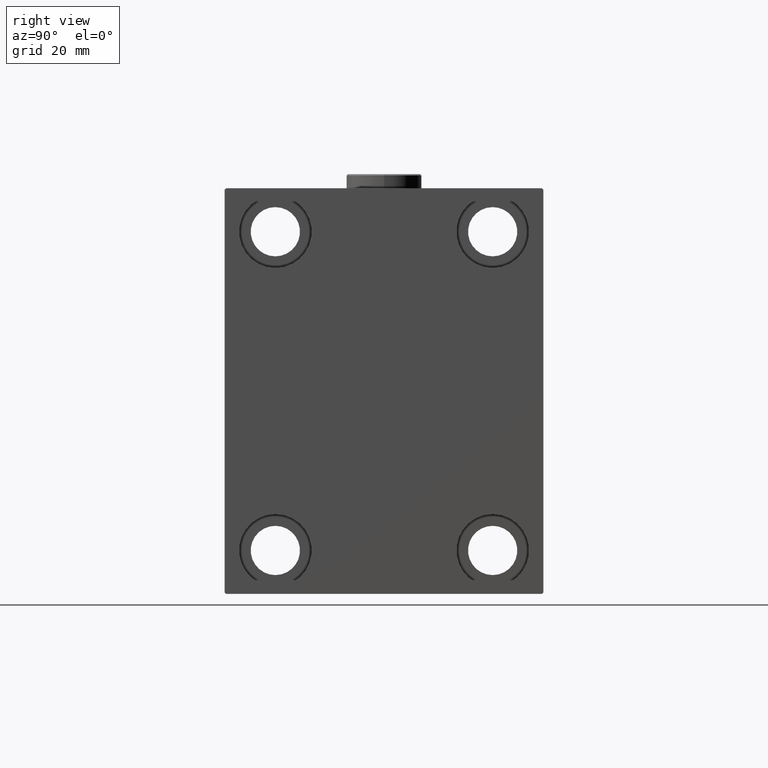
[diagram: clean part render]
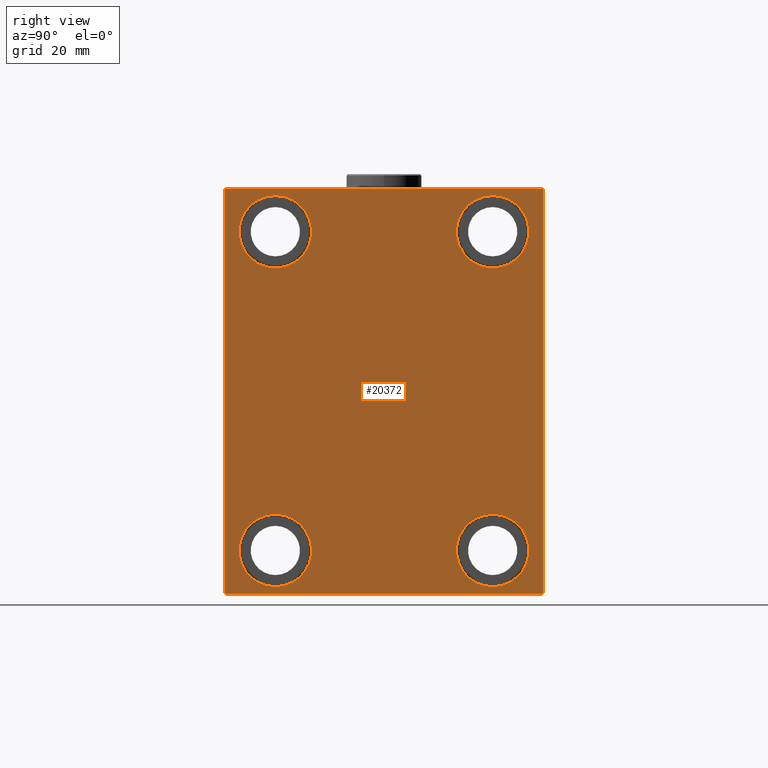
[diagram: same view with one face highlighted and labeled with its STEP entity id]
A machine part, right view. The second image highlights one B-rep face of the part: STEP entity #20372.
In plain terms, the highlighted planar face has unit normal (1, 0, 0).
Its self-contained STEP definition (entity closure, byte-faithful):
#80 = ORIENTED_EDGE ( 'NONE', *, *, #31693, .T. ) ;
#153 = ORIENTED_EDGE ( 'NONE', *, *, #15224, .T. ) ;
#292 = VERTEX_POINT ( 'NONE', #27396 ) ;
#642 = CARTESIAN_POINT ( 'NONE',  ( 103.0000000000000000, -55.00000000000000711, 69.99999999999998579 ) ) ;
#726 = CARTESIAN_POINT ( 'NONE',  ( 103.0000000000000000, 37.50000000000000711, 42.50000000000000711 ) ) ;
#1161 = EDGE_CURVE ( 'NONE', #18288, #46769, #21498, .T. ) ;
#1623 = CARTESIAN_POINT ( 'NONE',  ( 103.0000000000000000, 54.49999999999999289, 70.00000000000000000 ) ) ;
#2264 = DIRECTION ( 'NONE',  ( -1.000000000000000000, -0.000000000000000000, -0.000000000000000000 ) ) ;
#2378 = DIRECTION ( 'NONE',  ( 0.000000000000000000, 0.000000000000000000, -1.000000000000000000 ) ) ;
#2531 = LINE ( 'NONE', #20770, #16321 ) ;
#2836 = CIRCLE ( 'NONE', #5836, 12.49999999999999645 ) ;
#3513 = VERTEX_POINT ( 'NONE', #39877 ) ;
#3748 = CARTESIAN_POINT ( 'NONE',  ( 103.0000000000000000, 54.99999999999999289, 69.50000000000000000 ) ) ;
#3830 = AXIS2_PLACEMENT_3D ( 'NONE', #24161, #20611, #2378 ) ;
#4904 = VERTEX_POINT ( 'NONE', #46645 ) ;
#5102 = CARTESIAN_POINT ( 'NONE',  ( 103.0000000000000000, 55.00000000000002132, -70.00000000000000000 ) ) ;
#5345 = CARTESIAN_POINT ( 'NONE',  ( 103.0000000000000000, -37.50000000000002132, -54.99999999999999289 ) ) ;
#5430 = EDGE_CURVE ( 'NONE', #45223, #14395, #38967, .T. ) ;
#5817 = DIRECTION ( 'NONE',  ( 0.000000000000000000, 0.000000000000000000, 1.000000000000000000 ) ) ;
#5828 = CARTESIAN_POINT ( 'NONE',  ( 103.0000000000000000, 37.50000000000000711, 55.00000000000000711 ) ) ;
#5836 = AXIS2_PLACEMENT_3D ( 'NONE', #5345, #2264, #5817 ) ;
#5951 = VERTEX_POINT ( 'NONE', #17100 ) ;
#6180 = ORIENTED_EDGE ( 'NONE', *, *, #1161, .T. ) ;
#6215 = DIRECTION ( 'NONE',  ( 0.000000000000000000, 0.000000000000000000, 1.000000000000000000 ) ) ;
#6499 = EDGE_CURVE ( 'NONE', #14395, #38577, #2531, .T. ) ;
#7139 = CARTESIAN_POINT ( 'NONE',  ( 103.0000000000000000, 54.50000000000002132, -70.00000000000000000 ) ) ;
#8061 = DIRECTION ( 'NONE',  ( -1.000000000000000000, -0.000000000000000000, -0.000000000000000000 ) ) ;
#8659 = ORIENTED_EDGE ( 'NONE', *, *, #43898, .T. ) ;
#9234 = FACE_OUTER_BOUND ( 'NONE', #27817, .T. ) ;
#9247 = CARTESIAN_POINT ( 'NONE',  ( 103.0000000000000000, -55.00000000000000711, -70.00000000000002842 ) ) ;
#10245 = DIRECTION ( 'NONE',  ( 0.000000000000000000, 0.000000000000000000, 1.000000000000000000 ) ) ;
#10285 = CARTESIAN_POINT ( 'NONE',  ( 103.0000000000000000, -37.50000000000000711, 55.00000000000000711 ) ) ;
#10734 = CARTESIAN_POINT ( 'NONE',  ( 103.0000000000000000, 54.99999999999999289, 70.00000000000000000 ) ) ;
#10878 = CARTESIAN_POINT ( 'NONE',  ( 103.0000000000000000, 37.49999999999997868, -42.49999999999999289 ) ) ;
#11059 = DIRECTION ( 'NONE',  ( 0.000000000000000000, 0.000000000000000000, -1.000000000000000000 ) ) ;
#11295 = CIRCLE ( 'NONE', #20374, 12.49999999999999645 ) ;
#11739 = CIRCLE ( 'NONE', #37440, 12.49999999999999645 ) ;
#11879 = LINE ( 'NONE', #36769, #16617 ) ;
#12172 = EDGE_CURVE ( 'NONE', #4904, #35708, #27275, .T. ) ;
#12396 = VERTEX_POINT ( 'NONE', #19160 ) ;
#12477 = ORIENTED_EDGE ( 'NONE', *, *, #16782, .T. ) ;
#12679 = ORIENTED_EDGE ( 'NONE', *, *, #6499, .T. ) ;
#13565 = EDGE_LOOP ( 'NONE', ( #8659, #6180 ) ) ;
#13699 = VERTEX_POINT ( 'NONE', #3748 ) ;
#14289 = AXIS2_PLACEMENT_3D ( 'NONE', #28555, #21879, #18106 ) ;
#14395 = VERTEX_POINT ( 'NONE', #45372 ) ;
#15224 = EDGE_CURVE ( 'NONE', #43288, #5951, #40023, .T. ) ;
#15641 = DIRECTION ( 'NONE',  ( -0.000000000000000000, 0.7071067811865574537, -0.7071067811865376918 ) ) ;
#16127 = DIRECTION ( 'NONE',  ( -1.000000000000000000, -0.000000000000000000, -0.000000000000000000 ) ) ;
#16321 = VECTOR ( 'NONE', #35234, 1000.000000000000114 ) ;
#16436 = ORIENTED_EDGE ( 'NONE', *, *, #5430, .T. ) ;
#16599 = CARTESIAN_POINT ( 'NONE',  ( 103.0000000000000000, 37.49999999999997868, -54.99999999999999289 ) ) ;
#16617 = VECTOR ( 'NONE', #27046, 1000.000000000000114 ) ;
#16782 = EDGE_CURVE ( 'NONE', #35708, #3513, #11879, .T. ) ;
#16952 = EDGE_CURVE ( 'NONE', #23728, #27990, #11295, .T. ) ;
#17100 = CARTESIAN_POINT ( 'NONE',  ( 103.0000000000000000, -37.50000000000002132, -42.49999999999999289 ) ) ;
#17294 = FACE_BOUND ( 'NONE', #13565, .T. ) ;
#18106 = DIRECTION ( 'NONE',  ( 0.000000000000000000, 0.000000000000000000, 1.000000000000000000 ) ) ;
#18288 = VERTEX_POINT ( 'NONE', #10878 ) ;
#18484 = EDGE_CURVE ( 'NONE', #38577, #12396, #29307, .T. ) ;
#19160 = CARTESIAN_POINT ( 'NONE',  ( 103.0000000000000000, -55.00000000000000711, -69.50000000000007105 ) ) ;
#19163 = CARTESIAN_POINT ( 'NONE',  ( 103.0000000000000000, -37.50000000000000711, 42.50000000000000711 ) ) ;
#19660 = CARTESIAN_POINT ( 'NONE',  ( 103.0000000000000000, -62.24999999999927525, -62.25000000000100897 ) ) ;
#20014 = EDGE_LOOP ( 'NONE', ( #29782, #80 ) ) ;
#20372 = ADVANCED_FACE ( 'NONE', ( #17294, #27970, #31746, #27741, #9234 ), #46198, .T. ) ;
#20374 = AXIS2_PLACEMENT_3D ( 'NONE', #23255, #38447, #6215 ) ;
#20611 = DIRECTION ( 'NONE',  ( 1.000000000000000000, 0.000000000000000000, 0.000000000000000000 ) ) ;
#20626 = DIRECTION ( 'NONE',  ( 0.000000000000000000, 1.000000000000000000, 2.523234146875355012E-16 ) ) ;
#20770 = CARTESIAN_POINT ( 'NONE',  ( 103.0000000000000000, -62.25000000000000000, 62.25000000000000000 ) ) ;
#20979 = DIRECTION ( 'NONE',  ( 0.000000000000000000, 0.000000000000000000, 1.000000000000000000 ) ) ;
#21115 = VECTOR ( 'NONE', #20626, 1000.000000000000000 ) ;
#21498 = CIRCLE ( 'NONE', #30568, 12.49999999999999645 ) ;
#21586 = CARTESIAN_POINT ( 'NONE',  ( 103.0000000000000000, 37.49999999999997868, -54.99999999999999289 ) ) ;
#21607 = VECTOR ( 'NONE', #23311, 1000.000000000000000 ) ;
#21879 = DIRECTION ( 'NONE',  ( -1.000000000000000000, -0.000000000000000000, -0.000000000000000000 ) ) ;
#23255 = CARTESIAN_POINT ( 'NONE',  ( 103.0000000000000000, 37.50000000000000711, 55.00000000000000711 ) ) ;
#23311 = DIRECTION ( 'NONE',  ( 0.000000000000000000, -1.982541115402065110E-16, 1.000000000000000000 ) ) ;
#23728 = VERTEX_POINT ( 'NONE', #726 ) ;
#23993 = EDGE_LOOP ( 'NONE', ( #45171, #34677 ) ) ;
#24161 = CARTESIAN_POINT ( 'NONE',  ( 103.0000000000000000, 0.000000000000000000, 0.000000000000000000 ) ) ;
#24519 = CIRCLE ( 'NONE', #36630, 12.49999999999999645 ) ;
#24731 = DIRECTION ( 'NONE',  ( -1.000000000000000000, -0.000000000000000000, -0.000000000000000000 ) ) ;
#26902 = LINE ( 'NONE', #5102, #21607 ) ;
#27046 = DIRECTION ( 'NONE',  ( -0.000000000000000000, 0.7071067811865474617, 0.7071067811865474617 ) ) ;
#27275 = LINE ( 'NONE', #9247, #21115 ) ;
#27396 = CARTESIAN_POINT ( 'NONE',  ( 103.0000000000000000, -37.50000000000000711, 67.50000000000000000 ) ) ;
#27556 = VERTEX_POINT ( 'NONE', #19163 ) ;
#27741 = FACE_BOUND ( 'NONE', #46497, .T. ) ;
#27817 = EDGE_LOOP ( 'NONE', ( #16436, #12679, #46853, #40853, #33784, #12477, #31877, #30464 ) ) ;
#27970 = FACE_BOUND ( 'NONE', #20014, .T. ) ;
#27990 = VERTEX_POINT ( 'NONE', #38400 ) ;
#28392 = VECTOR ( 'NONE', #15641, 999.9999999999998863 ) ;
#28555 = CARTESIAN_POINT ( 'NONE',  ( 103.0000000000000000, -37.50000000000002132, -54.99999999999999289 ) ) ;
#29307 = LINE ( 'NONE', #642, #31800 ) ;
#29782 = ORIENTED_EDGE ( 'NONE', *, *, #44703, .T. ) ;
#30464 = ORIENTED_EDGE ( 'NONE', *, *, #34859, .T. ) ;
#30568 = AXIS2_PLACEMENT_3D ( 'NONE', #16599, #16127, #34388 ) ;
#31693 = EDGE_CURVE ( 'NONE', #292, #27556, #38123, .T. ) ;
#31746 = FACE_BOUND ( 'NONE', #23993, .T. ) ;
#31800 = VECTOR ( 'NONE', #11059, 1000.000000000000000 ) ;
#31877 = ORIENTED_EDGE ( 'NONE', *, *, #36042, .T. ) ;
#32271 = ORIENTED_EDGE ( 'NONE', *, *, #37786, .T. ) ;
#33784 = ORIENTED_EDGE ( 'NONE', *, *, #12172, .T. ) ;
#34388 = DIRECTION ( 'NONE',  ( 0.000000000000000000, 0.000000000000000000, 1.000000000000000000 ) ) ;
#34677 = ORIENTED_EDGE ( 'NONE', *, *, #46707, .T. ) ;
#34859 = EDGE_CURVE ( 'NONE', #13699, #45223, #40757, .T. ) ;
#34976 = DIRECTION ( 'NONE',  ( -1.000000000000000000, -0.000000000000000000, -0.000000000000000000 ) ) ;
#35234 = DIRECTION ( 'NONE',  ( 0.000000000000000000, -0.7071067811865474617, -0.7071067811865474617 ) ) ;
#35637 = DIRECTION ( 'NONE',  ( 0.000000000000000000, -1.000000000000000000, -1.261617073437677999E-16 ) ) ;
#35708 = VERTEX_POINT ( 'NONE', #7139 ) ;
#35783 = EDGE_CURVE ( 'NONE', #12396, #4904, #41461, .T. ) ;
#35818 = DIRECTION ( 'NONE',  ( 0.000000000000000000, 0.000000000000000000, 1.000000000000000000 ) ) ;
#36042 = EDGE_CURVE ( 'NONE', #3513, #13699, #26902, .T. ) ;
#36630 = AXIS2_PLACEMENT_3D ( 'NONE', #45374, #46255, #10245 ) ;
#36769 = CARTESIAN_POINT ( 'NONE',  ( 103.0000000000000000, 62.25000000000000711, -62.25000000000000711 ) ) ;
#37408 = CIRCLE ( 'NONE', #44199, 12.49999999999999645 ) ;
#37440 = AXIS2_PLACEMENT_3D ( 'NONE', #21586, #8061, #35818 ) ;
#37499 = CARTESIAN_POINT ( 'NONE',  ( 103.0000000000000000, 37.49999999999997868, -67.49999999999998579 ) ) ;
#37786 = EDGE_CURVE ( 'NONE', #5951, #43288, #2836, .T. ) ;
#38123 = CIRCLE ( 'NONE', #45701, 12.49999999999999645 ) ;
#38255 = DIRECTION ( 'NONE',  ( 0.000000000000000000, 0.000000000000000000, 1.000000000000000000 ) ) ;
#38400 = CARTESIAN_POINT ( 'NONE',  ( 103.0000000000000000, 37.50000000000000711, 67.50000000000000000 ) ) ;
#38447 = DIRECTION ( 'NONE',  ( -1.000000000000000000, -0.000000000000000000, -0.000000000000000000 ) ) ;
#38577 = VERTEX_POINT ( 'NONE', #40964 ) ;
#38967 = LINE ( 'NONE', #10734, #41155 ) ;
#39877 = CARTESIAN_POINT ( 'NONE',  ( 103.0000000000000000, 55.00000000000002132, -69.50000000000000000 ) ) ;
#40023 = CIRCLE ( 'NONE', #14289, 12.49999999999999645 ) ;
#40757 = LINE ( 'NONE', #41225, #44239 ) ;
#40819 = CARTESIAN_POINT ( 'NONE',  ( 103.0000000000000000, -37.50000000000002132, -67.49999999999998579 ) ) ;
#40853 = ORIENTED_EDGE ( 'NONE', *, *, #35783, .T. ) ;
#40964 = CARTESIAN_POINT ( 'NONE',  ( 103.0000000000000000, -55.00000000000000711, 69.49999999999998579 ) ) ;
#41155 = VECTOR ( 'NONE', #35637, 1000.000000000000000 ) ;
#41225 = CARTESIAN_POINT ( 'NONE',  ( 103.0000000000000000, 62.24999999999999289, 62.24999999999999289 ) ) ;
#41461 = LINE ( 'NONE', #19660, #28392 ) ;
#43288 = VERTEX_POINT ( 'NONE', #40819 ) ;
#43898 = EDGE_CURVE ( 'NONE', #46769, #18288, #11739, .T. ) ;
#44199 = AXIS2_PLACEMENT_3D ( 'NONE', #5828, #34976, #20979 ) ;
#44239 = VECTOR ( 'NONE', #44770, 1000.000000000000114 ) ;
#44703 = EDGE_CURVE ( 'NONE', #27556, #292, #24519, .T. ) ;
#44770 = DIRECTION ( 'NONE',  ( -0.000000000000000000, -0.7071067811865474617, 0.7071067811865474617 ) ) ;
#45171 = ORIENTED_EDGE ( 'NONE', *, *, #16952, .T. ) ;
#45223 = VERTEX_POINT ( 'NONE', #1623 ) ;
#45372 = CARTESIAN_POINT ( 'NONE',  ( 103.0000000000000000, -54.50000000000000711, 69.99999999999998579 ) ) ;
#45374 = CARTESIAN_POINT ( 'NONE',  ( 103.0000000000000000, -37.50000000000000711, 55.00000000000000711 ) ) ;
#45701 = AXIS2_PLACEMENT_3D ( 'NONE', #10285, #24731, #38255 ) ;
#46198 = PLANE ( 'NONE',  #3830 ) ;
#46255 = DIRECTION ( 'NONE',  ( -1.000000000000000000, -0.000000000000000000, -0.000000000000000000 ) ) ;
#46497 = EDGE_LOOP ( 'NONE', ( #153, #32271 ) ) ;
#46645 = CARTESIAN_POINT ( 'NONE',  ( 103.0000000000000000, -54.50000000000003553, -70.00000000000002842 ) ) ;
#46707 = EDGE_CURVE ( 'NONE', #27990, #23728, #37408, .T. ) ;
#46769 = VERTEX_POINT ( 'NONE', #37499 ) ;
#46853 = ORIENTED_EDGE ( 'NONE', *, *, #18484, .T. ) ;